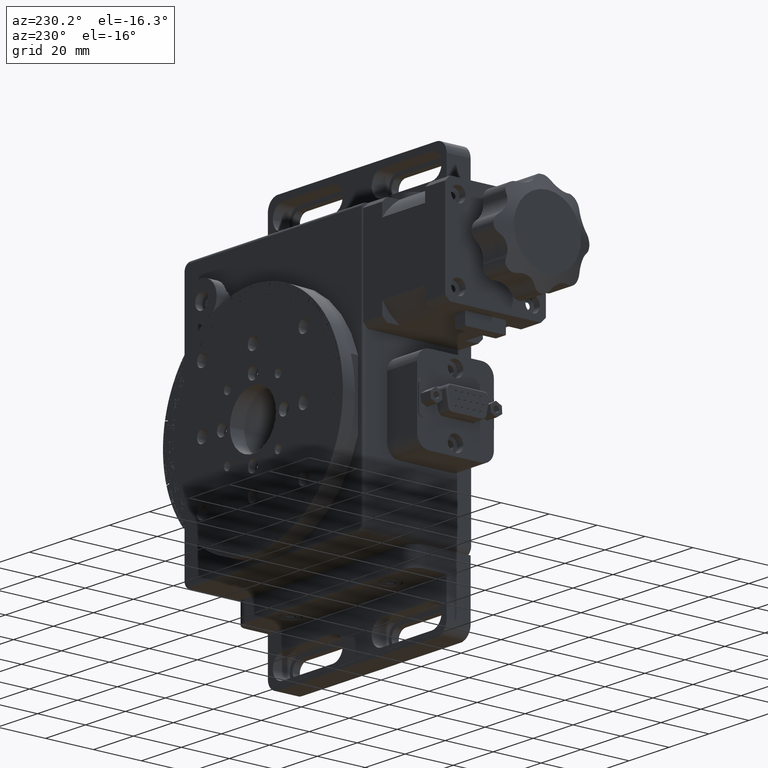
[diagram: clean part render]
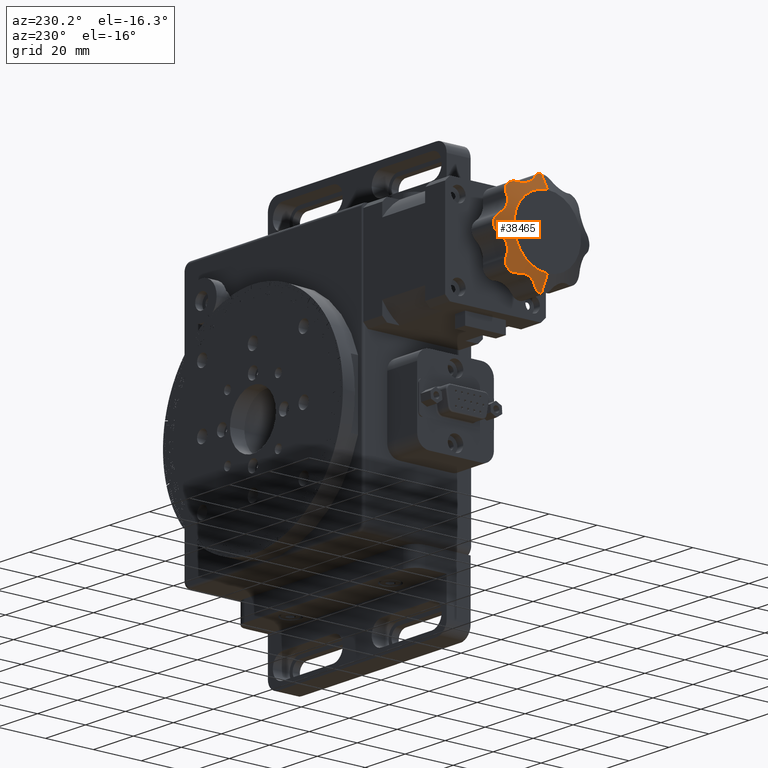
[diagram: same view with one face highlighted and labeled with its STEP entity id]
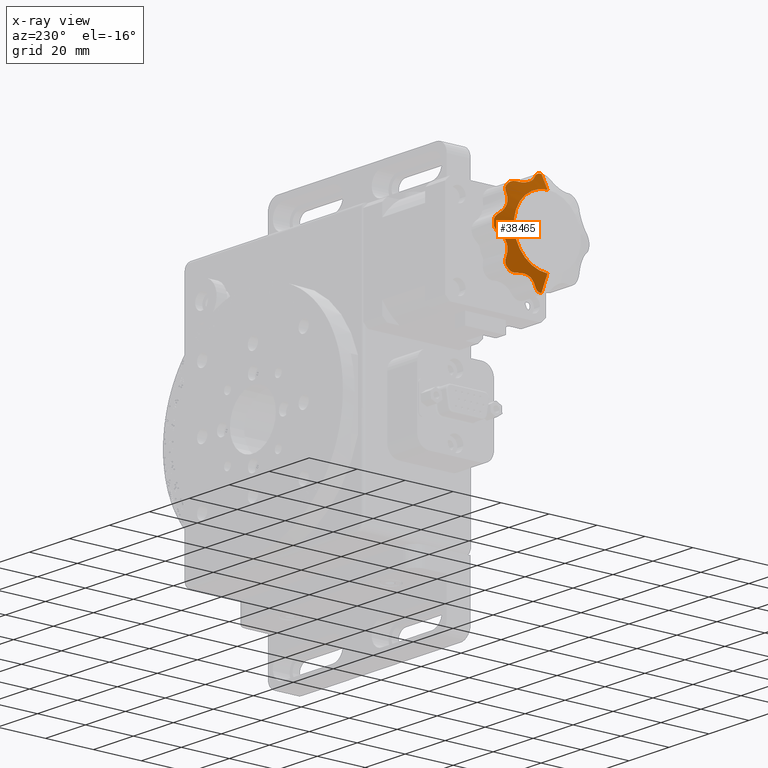
[diagram: x-ray of the same camera — body ghosted, the highlighted face saturated]
A machine part, auxiliary view. The second image highlights one B-rep face of the part: STEP entity #38465.
The next image is the same camera in x-ray: the body ghosted, the highlighted face saturated — about 0% of this face is hidden behind the body in this view.
In plain terms, the highlighted conical surface has half-angle 63 deg.
Its self-contained STEP definition (entity closure, byte-faithful):
#58 = CARTESIAN_POINT ( 'NONE',  ( -109.0000000000000000, 25.04832746820648700, 23.13981742408422400 ) ) ;
#455 = CARTESIAN_POINT ( 'NONE',  ( -110.4291772330564600, 29.62982667261972800, 26.86866267010562100 ) ) ;
#838 = VERTEX_POINT ( 'NONE', #96281 ) ;
#971 = EDGE_CURVE ( 'NONE', #35705, #40486, #5458, .T. ) ;
#1101 = B_SPLINE_CURVE_WITH_KNOTS ( 'NONE', 3,
 ( #16782, #100519, #42309, #101640, #50831, #58 ),
 .UNSPECIFIED., .F., .F.,
 ( 4, 2, 4 ),
 ( 2.561101793522169900E-007, 0.001425904833248683100, 0.002851553556318014000 ),
 .UNSPECIFIED. ) ;
#4368 = VERTEX_POINT ( 'NONE', #90158 ) ;
#4793 = CARTESIAN_POINT ( 'NONE',  ( -109.1420244716242400, 43.51593570404259700, 41.07836989509927200 ) ) ;
#4918 = CARTESIAN_POINT ( 'NONE',  ( -109.0515187176439400, 43.73450244827620300, 44.51111057135570800 ) ) ;
#5458 = CIRCLE ( 'NONE', #14194, 19.88783151651545800 ) ;
#6206 = ORIENTED_EDGE ( 'NONE', *, *, #98631, .T. ) ;
#6527 = CARTESIAN_POINT ( 'NONE',  ( -109.9063472167101700, 39.13607644208976700, 52.95329744906055700 ) ) ;
#6711 = CARTESIAN_POINT ( 'NONE',  ( -109.4321513908461400, 35.31370849898488700, 58.31370849898464600 ) ) ;
#6808 = DIRECTION ( 'NONE',  ( -1.000000000000000000, -1.224606353822377500E-016, 1.224606353822385100E-016 ) ) ;
#6860 = CARTESIAN_POINT ( 'NONE',  ( -110.1076968662358700, 41.23818802919774400, 38.87134215408395500 ) ) ;
#6895 = CARTESIAN_POINT ( 'NONE',  ( -110.3782248456928800, 40.36615583551913000, 48.24613468142371200 ) ) ;
#7222 = CARTESIAN_POINT ( 'NONE',  ( -109.8957182112122400, 39.15889358946785100, 33.05108196027770600 ) ) ;
#7373 = CARTESIAN_POINT ( 'NONE',  ( -109.0000000000000000, 43.86018257591578600, 41.95167253179373300 ) ) ;
#7647 = CARTESIAN_POINT ( 'NONE',  ( -110.1076968662359300, 28.12865784591646800, 60.23818802919773700 ) ) ;
#7754 = CARTESIAN_POINT ( 'NONE',  ( -109.6624876279491000, 39.25348212235951500, 53.62220015011042300 ) ) ;
#8005 = CARTESIAN_POINT ( 'NONE',  ( -109.8957182112121300, 33.94891803972292600, 58.15889358946765200 ) ) ;
#8156 = CARTESIAN_POINT ( 'NONE',  ( -109.1914101639428500, 26.12432713278854400, 62.39726155890817000 ) ) ;
#8573 = CARTESIAN_POINT ( 'NONE',  ( -109.0593759180046200, 39.00145618236304300, 55.88054708598183900 ) ) ;
#9009 = CARTESIAN_POINT ( 'NONE',  ( -110.3059522471157400, 28.88491938119797800, 26.37575942050471100 ) ) ;
#9166 = ORIENTED_EDGE ( 'NONE', *, *, #20438, .T. ) ;
#10439 = AXIS2_PLACEMENT_3D ( 'NONE', #20477, #96414, #79724 ) ;
#10501 = VERTEX_POINT ( 'NONE', #46191 ) ;
#10948 = CARTESIAN_POINT ( 'NONE',  ( -109.0000000000000000, 38.78454923670613400, 56.30199031336002200 ) ) ;
#11014 = B_SPLINE_CURVE_WITH_KNOTS ( 'NONE', 3,
 ( #92602, #100784, #109661, #58900, #8156, #67434, #16669, #75912, #25222, #84437 ),
 .UNSPECIFIED., .F., .F.,
 ( 4, 2, 2, 2, 4 ),
 ( 1.845941822928171800E-006, 0.0007127976259173467500, 0.001423749310011765400, 0.002134700994106183900, 0.002845652678200602600 ),
 .UNSPECIFIED. ) ;
#12792 = CIRCLE ( 'NONE', #22928, 19.88783151651545800 ) ;
#12962 = CARTESIAN_POINT ( 'NONE',  ( -112.0000000000000000, 23.99999999999997900, 43.00000000000004300 ) ) ;
#13064 = VERTEX_POINT ( 'NONE', #21336 ) ;
#13369 = CARTESIAN_POINT ( 'NONE',  ( -109.3045522205684500, 43.12800550427289200, 40.49605642396366500 ) ) ;
#13539 = VERTEX_POINT ( 'NONE', #72637 ) ;
#14194 = AXIS2_PLACEMENT_3D ( 'NONE', #99216, #48440, #107723 ) ;
#15063 = CARTESIAN_POINT ( 'NONE',  ( -110.1076970187258200, 39.10864167487844900, 52.26983697631865100 ) ) ;
#15192 = CARTESIAN_POINT ( 'NONE',  ( -109.1420244698525300, 36.44105280815430300, 27.84135184706145000 ) ) ;
#15314 = CARTESIAN_POINT ( 'NONE',  ( -109.3809031888825800, 35.48297365426956400, 58.31370849898463100 ) ) ;
#15395 = CARTESIAN_POINT ( 'NONE',  ( -110.3777367299795000, 40.36799925479998300, 37.75655400316270500 ) ) ;
#15411 = VERTEX_POINT ( 'NONE', #10948 ) ;
#15431 = CARTESIAN_POINT ( 'NONE',  ( -110.1806272532480200, 41.01203306021660900, 47.40749196638285700 ) ) ;
#15747 = CARTESIAN_POINT ( 'NONE',  ( -109.6624876279491000, 39.25348212235938700, 32.37779984988967600 ) ) ;
#16157 = CARTESIAN_POINT ( 'NONE',  ( -110.3777367299794900, 29.24344599683774200, 59.36799925479992600 ) ) ;
#16162 = CARTESIAN_POINT ( 'NONE',  ( -109.4321513908461400, 35.31370849898488700, 58.31370849898464600 ) ) ;
#16217 = CARTESIAN_POINT ( 'NONE',  ( -109.1340889378583700, 39.17828670694442600, 30.55348321901173100 ) ) ;
#16521 = CARTESIAN_POINT ( 'NONE',  ( -109.6624876279491000, 34.62220015011099900, 58.25348212235913100 ) ) ;
#16669 = CARTESIAN_POINT ( 'NONE',  ( -109.3674099949588800, 26.67840610605252700, 61.97955883692398500 ) ) ;
#16716 = ORIENTED_EDGE ( 'NONE', *, *, #91020, .T. ) ;
#16782 = CARTESIAN_POINT ( 'NONE',  ( -109.6624876279491300, 27.27481088816425400, 24.70312959730815900 ) ) ;
#17020 = EDGE_CURVE ( 'NONE', #61910, #4368, #48935, .T. ) ;
#17096 = CARTESIAN_POINT ( 'NONE',  ( -109.1914101614185700, 39.21806130307897600, 55.21380907498691200 ) ) ;
#17541 = CARTESIAN_POINT ( 'NONE',  ( -110.0435970462969700, 27.98589153905229000, 25.60334698750435200 ) ) ;
#17656 = EDGE_LOOP ( 'NONE', ( #31228, #33960, #42506, #109329, #6206, #52211, #92296, #82009, #87886, #17954, #9166, #25016, #44854, #98748, #46404, #16716, #84000, #90955, #52110, #71165, #56763, #62575 ) ) ;
#17954 = ORIENTED_EDGE ( 'NONE', *, *, #100106, .T. ) ;
#19470 = EDGE_CURVE ( 'NONE', #4368, #107686, #1101, .T. ) ;
#20004 = CARTESIAN_POINT ( 'NONE',  ( -109.0000000000000000, 23.99999999999998200, 62.88783151651553300 ) ) ;
#20438 = EDGE_CURVE ( 'NONE', #72836, #73378, #86469, .T. ) ;
#20477 = CARTESIAN_POINT ( 'NONE',  ( -112.0000000000000000, 23.99999999999997900, 43.00000000000004300 ) ) ;
#20658 = VERTEX_POINT ( 'NONE', #69460 ) ;
#21336 = CARTESIAN_POINT ( 'NONE',  ( -109.0000000000000300, 38.78454923670596300, 29.69800968664007700 ) ) ;
#21469 = DIRECTION ( 'NONE',  ( 0.0000000000000000000, 2.478176394252584600E-016, 1.000000000000000000 ) ) ;
#21883 = CARTESIAN_POINT ( 'NONE',  ( -109.5055536226903600, 42.65707282124853400, 40.00140130157240700 ) ) ;
#22928 = AXIS2_PLACEMENT_3D ( 'NONE', #44319, #103622, #52830 ) ;
#23088 = AXIS2_PLACEMENT_3D ( 'NONE', #27063, #86308, #35515 ) ;
#23309 = CARTESIAN_POINT ( 'NONE',  ( -109.4997279871319100, 39.33184240520777300, 31.93135292558533300 ) ) ;
#23727 = CARTESIAN_POINT ( 'NONE',  ( -109.3045522164379800, 35.75498693602106200, 27.70390211689390000 ) ) ;
#23925 = CARTESIAN_POINT ( 'NONE',  ( -110.4712212983298100, 39.84595546684309400, 36.83165703848045100 ) ) ;
#23968 = CARTESIAN_POINT ( 'NONE',  ( -109.8957180678858800, 41.75390421083993400, 46.68400874897201200 ) ) ;
#24196 = CARTESIAN_POINT ( 'NONE',  ( -109.2438062084029400, 35.99637814111690700, 58.25881527042838600 ) ) ;
#24714 = CARTESIAN_POINT ( 'NONE',  ( -110.4712212983297900, 30.16834296152004700, 58.84595546684301600 ) ) ;
#24774 = CARTESIAN_POINT ( 'NONE',  ( -109.0000000000000300, 38.78454923670596300, 29.69800968664007700 ) ) ;
#24960 = CARTESIAN_POINT ( 'NONE',  ( -109.6624876279491000, 34.62220015011085600, 27.74651787764096200 ) ) ;
#25016 = ORIENTED_EDGE ( 'NONE', *, *, #53394, .T. ) ;
#25222 = CARTESIAN_POINT ( 'NONE',  ( -109.5812778788824200, 27.14494457708912400, 61.48203000465140600 ) ) ;
#25485 = VERTEX_POINT ( 'NONE', #24960 ) ;
#25627 = CARTESIAN_POINT ( 'NONE',  ( -109.3674099899103900, 39.31449387680415000, 54.52665565504215600 ) ) ;
#26031 = AXIS2_PLACEMENT_3D ( 'NONE', #57582, #6808, #66095 ) ;
#26072 = CARTESIAN_POINT ( 'NONE',  ( -109.6624876279491300, 27.27481088816425400, 24.70312959730815900 ) ) ;
#27063 = CARTESIAN_POINT ( 'NONE',  ( -109.0000000000000000, 23.99999999999997900, 43.00000000000004300 ) ) ;
#28965 = VERTEX_POINT ( 'NONE', #29216 ) ;
#29201 = CARTESIAN_POINT ( 'NONE',  ( -109.0000000000000000, 23.99999999999997900, 43.00000000000004300 ) ) ;
#29216 = CARTESIAN_POINT ( 'NONE',  ( -112.0000000000000000, 23.99999999999998200, 57.00000000000002800 ) ) ;
#29959 = CARTESIAN_POINT ( 'NONE',  ( -109.8159028688820300, 34.20138475563072700, 27.82037931904236300 ) ) ;
#30381 = CARTESIAN_POINT ( 'NONE',  ( -109.6624876279491000, 42.29687040269192300, 39.72518911183600900 ) ) ;
#30710 = B_SPLINE_CURVE_WITH_KNOTS ( 'NONE', 3,
 ( #100695, #23309, #66991, #16217, #75486, #24774 ),
 .UNSPECIFIED., .F., .F.,
 ( 4, 2, 4 ),
 ( 2.128886231613393700E-007, 0.001425860909439208300, 0.002851508930255245700 ),
 .UNSPECIFIED. ) ;
#30835 = CIRCLE ( 'NONE', #94810, 19.88783151651545800 ) ;
#31228 = ORIENTED_EDGE ( 'NONE', *, *, #48676, .F. ) ;
#32070 = CARTESIAN_POINT ( 'NONE',  ( -110.3777368135645800, 39.28159960163551300, 50.86624647211531400 ) ) ;
#32201 = CARTESIAN_POINT ( 'NONE',  ( -109.5055536155509200, 35.07221325748957200, 27.68712781607077400 ) ) ;
#32400 = CARTESIAN_POINT ( 'NONE',  ( -110.4667672571537600, 39.57582878604115700, 36.16361874731035200 ) ) ;
#32447 = CARTESIAN_POINT ( 'NONE',  ( -109.6624876279491000, 42.29687040269192300, 46.27481088816409700 ) ) ;
#32689 = CARTESIAN_POINT ( 'NONE',  ( -109.0941526861526100, 36.66954619101479600, 58.09278166667656500 ) ) ;
#33187 = CARTESIAN_POINT ( 'NONE',  ( -110.4667672571537100, 30.83638125269014900, 58.57582878604105000 ) ) ;
#33960 = ORIENTED_EDGE ( 'NONE', *, *, #75757, .F. ) ;
#34046 = VECTOR ( 'NONE', #48104, 1000.000000000000000 ) ;
#34129 = CARTESIAN_POINT ( 'NONE',  ( -109.5812778587598800, 39.29258039298565600, 53.84495716466253200 ) ) ;
#34193 = CARTESIAN_POINT ( 'NONE',  ( -110.3424863418963900, 32.16014087459131300, 27.78756697079150900 ) ) ;
#34699 = EDGE_CURVE ( 'NONE', #107686, #89785, #12792, .T. ) ;
#35515 = DIRECTION ( 'NONE',  ( 0.0000000000000000000, 1.744507413526949900E-016, 1.000000000000000000 ) ) ;
#35705 = VERTEX_POINT ( 'NONE', #20004 ) ;
#36896 = CARTESIAN_POINT ( 'NONE',  ( -109.0000000000000000, 37.30199031336037100, 28.21545076329443100 ) ) ;
#37678 = DIRECTION ( 'NONE',  ( 0.0000000000000000000, 1.744507413526949900E-016, 1.000000000000000000 ) ) ;
#38243 = CARTESIAN_POINT ( 'NONE',  ( -109.0000000000000000, 25.04832746820649100, 62.86018257591585700 ) ) ;
#38465 = ADVANCED_FACE ( 'NONE', ( #97726 ), #44660, .T. ) ;
#38486 = CARTESIAN_POINT ( 'NONE',  ( -109.0000000000000000, 43.86018257591578600, 41.95167253179373300 ) ) ;
#38618 = CARTESIAN_POINT ( 'NONE',  ( -109.4997281778311200, 42.66796470288767300, 46.01453463288231700 ) ) ;
#38952 = CARTESIAN_POINT ( 'NONE',  ( -109.6624876279491000, 34.62220015011099900, 58.25348212235913100 ) ) ;
#39550 = CARTESIAN_POINT ( 'NONE',  ( -112.0000000000000000, 23.99999999999998200, 57.00000000000002800 ) ) ;
#39888 = CARTESIAN_POINT ( 'NONE',  ( -109.6624876279491000, 34.62220015011085600, 27.74651787764096200 ) ) ;
#40336 = CARTESIAN_POINT ( 'NONE',  ( -109.0000000000000000, 37.30199031336037100, 28.21545076329443100 ) ) ;
#40486 = VERTEX_POINT ( 'NONE', #38243 ) ;
#40586 = CARTESIAN_POINT ( 'NONE',  ( -110.4712213111370700, 39.56645992878768700, 49.84310483437156600 ) ) ;
#40714 = CARTESIAN_POINT ( 'NONE',  ( -109.6624876279491000, 34.62220015011085600, 27.74651787764096200 ) ) ;
#40918 = CARTESIAN_POINT ( 'NONE',  ( -110.4338197077304500, 39.41300267155308700, 35.65260713818968000 ) ) ;
#41180 = CARTESIAN_POINT ( 'NONE',  ( -109.0000000000000000, 37.30199031336052000, 57.78454923670565100 ) ) ;
#41704 = CARTESIAN_POINT ( 'NONE',  ( -110.4338197077303900, 31.34739286181085300, 58.41300267155297400 ) ) ;
#42309 = CARTESIAN_POINT ( 'NONE',  ( -109.3610719225173000, 26.69392727460955300, 24.00651130601104900 ) ) ;
#42506 = ORIENTED_EDGE ( 'NONE', *, *, #74126, .T. ) ;
#42702 = CARTESIAN_POINT ( 'NONE',  ( -110.4616876282445500, 31.00643195562418000, 27.48708374911698700 ) ) ;
#43210 = B_SPLINE_CURVE_WITH_KNOTS ( 'NONE', 3,
 ( #58601, #101221, #8573, #67854, #17096, #76338, #25627, #84855, #34129, #93399 ),
 .UNSPECIFIED., .F., .F.,
 ( 4, 2, 2, 2, 4 ),
 ( 1.845941825708950900E-006, 0.0007127976189506828500, 0.001423749296075656600, 0.002134700973200630600, 0.002845652650325604300 ),
 .UNSPECIFIED. ) ;
#44319 = CARTESIAN_POINT ( 'NONE',  ( -109.0000000000000000, 23.99999999999997900, 43.00000000000004300 ) ) ;
#44488 = CARTESIAN_POINT ( 'NONE',  ( -110.0681554785693000, 33.34121878844487700, 27.85808394342098600 ) ) ;
#44660 = CONICAL_SURFACE ( 'NONE', #10439, 13.99999999999998400, 1.099557428756430000 ) ;
#44854 = ORIENTED_EDGE ( 'NONE', *, *, #56668, .T. ) ;
#46191 = CARTESIAN_POINT ( 'NONE',  ( -109.6624876279491300, 27.27481088816437400, 61.29687040269195100 ) ) ;
#46404 = ORIENTED_EDGE ( 'NONE', *, *, #100917, .T. ) ;
#46428 = DIRECTION ( 'NONE',  ( 0.4539904997395443600, -2.120948867251498700E-016, -0.8910065241883691200 ) ) ;
#46671 = VERTEX_POINT ( 'NONE', #36896 ) ;
#48104 = DIRECTION ( 'NONE',  ( 0.4539904997395446400, 2.141699880496890900E-016, 0.8910065241883690100 ) ) ;
#48324 = CARTESIAN_POINT ( 'NONE',  ( -109.0000000000000000, 43.86018257591578600, 44.04832746820635200 ) ) ;
#48440 = DIRECTION ( 'NONE',  ( -1.000000000000000000, -1.224606353822377500E-016, 1.224606353822385100E-016 ) ) ;
#48676 = EDGE_CURVE ( 'NONE', #20658, #89785, #57586, .T. ) ;
#48935 = B_SPLINE_CURVE_WITH_KNOTS ( 'NONE', 3,
 ( #67933, #76418, #34193, #93470, #42702, #102029, #51210, #455, #59762, #9009, #68292, #17541, #76795, #26072 ),
 .UNSPECIFIED., .F., .F.,
 ( 4, 2, 2, 2, 2, 2, 4 ),
 ( 0.001345775553808600100, 0.003148209549154273600, 0.004049426546827101000, 0.004950643544499929800, 0.005851860542172757600, 0.006753077539845585500, 0.008555511535191257600 ),
 .UNSPECIFIED. ) ;
#49120 = CARTESIAN_POINT ( 'NONE',  ( -110.4667672483696200, 39.84782582704134800, 49.17972233872330200 ) ) ;
#49447 = CARTESIAN_POINT ( 'NONE',  ( -110.3234121039777300, 39.22019407640752300, 34.78953390261130400 ) ) ;
#49482 = EDGE_CURVE ( 'NONE', #25485, #61910, #93693, .T. ) ;
#50225 = B_SPLINE_CURVE_WITH_KNOTS ( 'NONE', 3,
 ( #38486, #55220, #55589, #4793, #64110, #13369, #72591, #21883, #81114, #30381 ),
 .UNSPECIFIED., .F., .F.,
 ( 4, 2, 2, 2, 4 ),
 ( 1.845941822940342200E-006, 0.0007127976259173225700, 0.001423749310011704700, 0.002134700994106086700, 0.002845652678200469000 ),
 .UNSPECIFIED. ) ;
#50228 = CARTESIAN_POINT ( 'NONE',  ( -110.3234121039777300, 32.21046609738925100, 58.22019407640738800 ) ) ;
#50831 = CARTESIAN_POINT ( 'NONE',  ( -109.0515187176439300, 25.51111057135590700, 23.26549755172381900 ) ) ;
#51210 = CARTESIAN_POINT ( 'NONE',  ( -110.4690261800602800, 30.16279612087919700, 27.14853277426054500 ) ) ;
#52110 = ORIENTED_EDGE ( 'NONE', *, *, #49482, .T. ) ;
#52211 = ORIENTED_EDGE ( 'NONE', *, *, #79757, .T. ) ;
#52830 = DIRECTION ( 'NONE',  ( 0.0000000000000000000, 1.744507413526949900E-016, 1.000000000000000000 ) ) ;
#52883 = CIRCLE ( 'NONE', #23088, 19.88783151651545800 ) ;
#53394 = EDGE_CURVE ( 'NONE', #73378, #93064, #109627, .T. ) ;
#54104 = VERTEX_POINT ( 'NONE', #7373 ) ;
#54592 = CARTESIAN_POINT ( 'NONE',  ( -109.0000000000000000, 37.30199031336052000, 57.78454923670565100 ) ) ;
#55000 = B_SPLINE_CURVE_WITH_KNOTS ( 'NONE', 3,
 ( #100264, #58396, #7647, #66938, #16157, #75420, #24714, #83936, #33187, #92454, #41704, #101009, #50228, #109522, #58768, #8005, #67296, #16521 ),
 .UNSPECIFIED., .F., .F.,
 ( 4, 2, 2, 2, 2, 2, 2, 2, 4 ),
 ( 2.564491608464168600E-007, 0.002139081010340496000, 0.003208493290930324700, 0.004277905571520152600, 0.004812611711815068300, 0.005347317852109983100, 0.006416730132699792800, 0.007486142413289602500, 0.008555554693879412200 ),
 .UNSPECIFIED. ) ;
#55220 = CARTESIAN_POINT ( 'NONE',  ( -109.0256971240976600, 43.79749433396676000, 41.72084002322608100 ) ) ;
#55589 = CARTESIAN_POINT ( 'NONE',  ( -109.0593759186635300, 43.71555358250858300, 41.50029079134323200 ) ) ;
#55723 = CARTESIAN_POINT ( 'NONE',  ( -109.1340889782051600, 43.53368578314130800, 44.93165305061462100 ) ) ;
#55823 = VERTEX_POINT ( 'NONE', #6711 ) ;
#56145 = EDGE_CURVE ( 'NONE', #13064, #46671, #30835, .T. ) ;
#56639 = LINE ( 'NONE', #39550, #34046 ) ;
#56668 = EDGE_CURVE ( 'NONE', #93064, #54104, #58493, .T. ) ;
#56763 = ORIENTED_EDGE ( 'NONE', *, *, #19470, .T. ) ;
#57025 = CARTESIAN_POINT ( 'NONE',  ( -110.0681554785693000, 33.34121878844487700, 27.85808394342098600 ) ) ;
#57366 = CARTESIAN_POINT ( 'NONE',  ( -109.0000000000000000, 25.04832746820648700, 23.13981742408422400 ) ) ;
#57550 = CARTESIAN_POINT ( 'NONE',  ( -109.4321513908461400, 35.31370849898488700, 58.31370849898464600 ) ) ;
#57582 = CARTESIAN_POINT ( 'NONE',  ( -109.0000000000000000, 23.99999999999997900, 43.00000000000004300 ) ) ;
#57586 = LINE ( 'NONE', #80504, #80079 ) ;
#57672 = CARTESIAN_POINT ( 'NONE',  ( -110.4338196571570700, 40.09403031007273200, 48.70324688186109100 ) ) ;
#57994 = CARTESIAN_POINT ( 'NONE',  ( -110.0936132756212800, 39.13437783158880000, 33.73762914353497400 ) ) ;
#58396 = CARTESIAN_POINT ( 'NONE',  ( -109.9063469930233300, 27.66477781365416900, 60.74086692416695900 ) ) ;
#58399 = CARTESIAN_POINT ( 'NONE',  ( -109.6624876279491000, 34.62220015011099900, 58.25348212235913100 ) ) ;
#58493 = CIRCLE ( 'NONE', #26031, 19.88783151651545800 ) ;
#58601 = CARTESIAN_POINT ( 'NONE',  ( -109.0000000000000000, 38.78454923670613400, 56.30199031336002200 ) ) ;
#58768 = CARTESIAN_POINT ( 'NONE',  ( -110.0936132756212100, 33.26237085646563000, 58.13437783158860800 ) ) ;
#58900 = CARTESIAN_POINT ( 'NONE',  ( -109.1420244716242000, 25.92163010490100200, 62.51593570404264000 ) ) ;
#59762 = CARTESIAN_POINT ( 'NONE',  ( -110.3962144957780000, 29.37442196788357100, 26.71391286247747800 ) ) ;
#61910 = VERTEX_POINT ( 'NONE', #44488 ) ;
#62575 = ORIENTED_EDGE ( 'NONE', *, *, #34699, .T. ) ;
#64110 = CARTESIAN_POINT ( 'NONE',  ( -109.1914101639428600, 43.39726155890811300, 40.87567286721174800 ) ) ;
#64232 = CARTESIAN_POINT ( 'NONE',  ( -109.0000000000000000, 43.86018257591578600, 44.04832746820635200 ) ) ;
#65937 = CARTESIAN_POINT ( 'NONE',  ( -109.0593759180045800, 36.88054708598227200, 27.99854381763731900 ) ) ;
#66095 = DIRECTION ( 'NONE',  ( 0.0000000000000000000, 1.744507413526949900E-016, 1.000000000000000000 ) ) ;
#66150 = CARTESIAN_POINT ( 'NONE',  ( -110.3225106727056900, 40.57110591280400100, 38.04765497597874500 ) ) ;
#66181 = CARTESIAN_POINT ( 'NONE',  ( -110.3234119966748900, 40.56797905133660700, 47.95662572260391000 ) ) ;
#66504 = CARTESIAN_POINT ( 'NONE',  ( -109.7844690265437600, 39.19475443748547900, 32.71239274989547900 ) ) ;
#66938 = CARTESIAN_POINT ( 'NONE',  ( -110.3225106727056600, 28.95234502402170700, 59.57110591280395100 ) ) ;
#66943 = CARTESIAN_POINT ( 'NONE',  ( -109.5025853109541500, 35.08107578276066400, 58.31370849898464600 ) ) ;
#66991 = CARTESIAN_POINT ( 'NONE',  ( -109.3610722483293900, 39.33531903817289100, 31.47447082142100400 ) ) ;
#67296 = CARTESIAN_POINT ( 'NONE',  ( -109.7844690265437200, 34.28760725010516100, 58.19475443748525100 ) ) ;
#67434 = CARTESIAN_POINT ( 'NONE',  ( -109.3045522205684500, 26.50394357603665100, 62.12800550427294200 ) ) ;
#67854 = CARTESIAN_POINT ( 'NONE',  ( -109.1420244698525900, 39.15864815293889500, 55.44105280815384900 ) ) ;
#67933 = CARTESIAN_POINT ( 'NONE',  ( -110.0681554785693000, 33.34121878844487700, 27.85808394342098600 ) ) ;
#67993 = CARTESIAN_POINT ( 'NONE',  ( -109.6624876279491000, 42.29687040269192300, 46.27481088816409700 ) ) ;
#68292 = CARTESIAN_POINT ( 'NONE',  ( -110.2481759545137800, 28.64938949128604400, 26.19102712521037900 ) ) ;
#69460 = CARTESIAN_POINT ( 'NONE',  ( -112.0000000000000000, 23.99999999999997200, 29.00000000000004600 ) ) ;
#69697 = B_SPLINE_CURVE_WITH_KNOTS ( 'NONE', 3,
 ( #73904, #82424, #6860, #66150, #15395, #74642, #23925, #83176, #32400, #91690, #40918, #100217, #49447, #108725, #57994, #7222, #66504, #15747 ),
 .UNSPECIFIED., .F., .F.,
 ( 4, 2, 2, 2, 2, 2, 2, 2, 4 ),
 ( 2.564491608260578400E-007, 0.002139081010340370600, 0.003208493290930143000, 0.004277905571519915800, 0.004812611711814815900, 0.005347317852109715100, 0.006416730132699504000, 0.007486142413289293700, 0.008555554693879082600 ),
 .UNSPECIFIED. ) ;
#71165 = ORIENTED_EDGE ( 'NONE', *, *, #17020, .T. ) ;
#71982 = CARTESIAN_POINT ( 'NONE',  ( -109.6624876279491000, 42.29687040269192300, 46.27481088816409700 ) ) ;
#72191 = DIRECTION ( 'NONE',  ( -1.000000000000000000, -1.224606353822377500E-016, 1.224606353822385100E-016 ) ) ;
#72591 = CARTESIAN_POINT ( 'NONE',  ( -109.3674099949588900, 42.97955883692394300, 40.32159389394781400 ) ) ;
#72637 = CARTESIAN_POINT ( 'NONE',  ( -109.6624876279491000, 39.25348212235938700, 32.37779984988967600 ) ) ;
#72790 = EDGE_CURVE ( 'NONE', #46671, #25485, #95623, .T. ) ;
#72836 = VERTEX_POINT ( 'NONE', #7754 ) ;
#73378 = VERTEX_POINT ( 'NONE', #67993 ) ;
#73506 = VERTEX_POINT ( 'NONE', #54592 ) ;
#73904 = CARTESIAN_POINT ( 'NONE',  ( -109.6624876279491000, 42.29687040269192300, 39.72518911183600900 ) ) ;
#74126 = EDGE_CURVE ( 'NONE', #28965, #35705, #56639, .T. ) ;
#74323 = CARTESIAN_POINT ( 'NONE',  ( -109.6624876279491000, 39.25348212235951500, 53.62220015011042300 ) ) ;
#74428 = CARTESIAN_POINT ( 'NONE',  ( -109.1914101614185500, 36.21380907498733100, 27.78193869692136500 ) ) ;
#74642 = CARTESIAN_POINT ( 'NONE',  ( -110.4519292569573100, 40.00592656906529500, 37.14916071202391400 ) ) ;
#74690 = CARTESIAN_POINT ( 'NONE',  ( -110.0936131362178700, 41.25110680748107200, 47.15213557454755700 ) ) ;
#74917 = CARTESIAN_POINT ( 'NONE',  ( -109.3329612935858300, 35.65335088679252400, 58.30301273992492400 ) ) ;
#75420 = CARTESIAN_POINT ( 'NONE',  ( -110.4519292569572700, 29.85083928797658400, 59.00592656906518800 ) ) ;
#75486 = CARTESIAN_POINT ( 'NONE',  ( -109.0515186887565600, 39.02291690299085000, 30.11411579429285000 ) ) ;
#75757 = EDGE_CURVE ( 'NONE', #28965, #20658, #97120, .T. ) ;
#75912 = CARTESIAN_POINT ( 'NONE',  ( -109.5055536226903300, 26.99859869842794400, 61.65707282124854800 ) ) ;
#76338 = CARTESIAN_POINT ( 'NONE',  ( -109.3045522164380000, 39.29609788310644100, 54.75498693602063600 ) ) ;
#76418 = CARTESIAN_POINT ( 'NONE',  ( -110.2234977601906800, 32.76054556079312600, 27.85808394342098300 ) ) ;
#76795 = CARTESIAN_POINT ( 'NONE',  ( -109.8680802084595500, 27.60358360723037700, 25.17188415954498400 ) ) ;
#79724 = DIRECTION ( 'NONE',  ( 0.0000000000000000000, 2.478176394252584600E-016, 1.000000000000000000 ) ) ;
#79757 = EDGE_CURVE ( 'NONE', #10501, #94685, #55000, .T. ) ;
#80079 = VECTOR ( 'NONE', #46428, 1000.000000000000100 ) ;
#80485 = EDGE_CURVE ( 'NONE', #54104, #838, #50225, .T. ) ;
#80504 = CARTESIAN_POINT ( 'NONE',  ( -112.0000000000000000, 23.99999999999997500, 29.00000000000006000 ) ) ;
#81114 = CARTESIAN_POINT ( 'NONE',  ( -109.5812778788824200, 42.48203000465138500, 39.85505542291124900 ) ) ;
#82009 = ORIENTED_EDGE ( 'NONE', *, *, #102424, .T. ) ;
#82424 = CARTESIAN_POINT ( 'NONE',  ( -109.9063469930233600, 41.74086692416697300, 39.33522218634622900 ) ) ;
#82846 = CARTESIAN_POINT ( 'NONE',  ( -110.3225106314464600, 39.21937809799158000, 51.21570479898589000 ) ) ;
#82972 = CARTESIAN_POINT ( 'NONE',  ( -109.3674099899103600, 35.52665565504256100, 27.68550612319619500 ) ) ;
#83176 = CARTESIAN_POINT ( 'NONE',  ( -110.4715224592072600, 39.63919999233127800, 36.33358083552285200 ) ) ;
#83215 = CARTESIAN_POINT ( 'NONE',  ( -109.7844689233043000, 42.01875098533094600, 46.46987688738230600 ) ) ;
#83450 = CARTESIAN_POINT ( 'NONE',  ( -109.2029685174675300, 36.16780458007140500, 58.22528648590337500 ) ) ;
#83936 = CARTESIAN_POINT ( 'NONE',  ( -110.4715224592072100, 30.66641916447766300, 58.63919999233119300 ) ) ;
#84000 = ORIENTED_EDGE ( 'NONE', *, *, #56145, .T. ) ;
#84437 = CARTESIAN_POINT ( 'NONE',  ( -109.6624876279491300, 27.27481088816437400, 61.29687040269195100 ) ) ;
#84855 = CARTESIAN_POINT ( 'NONE',  ( -109.5055536155509700, 39.31287218392957100, 54.07221325748913900 ) ) ;
#85358 = B_SPLINE_CURVE_WITH_KNOTS ( 'NONE', 3,
 ( #58399, #109165, #66943, #16162 ),
 .UNSPECIFIED., .F., .F.,
 ( 4, 4 ),
 ( 2.128886231613394000E-007, 0.0007293649178631464100 ),
 .UNSPECIFIED. ) ;
#86308 = DIRECTION ( 'NONE',  ( -1.000000000000000000, -1.224606353822377500E-016, 1.224606353822385100E-016 ) ) ;
#86469 = B_SPLINE_CURVE_WITH_KNOTS ( 'NONE', 3,
 ( #74323, #6527, #15063, #82846, #32070, #91361, #40586, #99892, #49120, #108413, #57672, #6895, #66181, #15431, #74690, #23968, #83215, #32447 ),
 .UNSPECIFIED., .F., .F.,
 ( 4, 2, 2, 2, 2, 2, 2, 2, 4 ),
 ( 2.131679597098142200E-007, 0.002139037759767483600, 0.003208450055671370100, 0.004277862351575258000, 0.004812568499527211000, 0.005347274647479164000, 0.006416686943383064800, 0.007486099239286965600, 0.008555511535190867300 ),
 .UNSPECIFIED. ) ;
#87886 = ORIENTED_EDGE ( 'NONE', *, *, #109020, .T. ) ;
#88024 = B_SPLINE_CURVE_WITH_KNOTS ( 'NONE', 3,
 ( #57550, #15314, #74917, #24196, #83450, #32689, #91962, #41180 ),
 .UNSPECIFIED., .F., .F.,
 ( 4, 2, 2, 4 ),
 ( 0.0007293649178631464100, 0.001259900920961147600, 0.001790436924059148900, 0.002851508930255165900 ),
 .UNSPECIFIED. ) ;
#88497 = DIRECTION ( 'NONE',  ( -1.000000000000000000, -1.224606353822377500E-016, 1.224606353822385100E-016 ) ) ;
#89785 = VERTEX_POINT ( 'NONE', #98894 ) ;
#90158 = CARTESIAN_POINT ( 'NONE',  ( -109.6624876279491300, 27.27481088816425400, 24.70312959730815900 ) ) ;
#90955 = ORIENTED_EDGE ( 'NONE', *, *, #72790, .T. ) ;
#91020 = EDGE_CURVE ( 'NONE', #13539, #13064, #30710, .T. ) ;
#91129 = CARTESIAN_POINT ( 'NONE',  ( -109.0256971238457500, 37.09443980228571300, 28.09655481331624600 ) ) ;
#91361 = CARTESIAN_POINT ( 'NONE',  ( -110.4519293113118000, 39.45506756187336400, 50.18073037974068700 ) ) ;
#91475 = CARTESIAN_POINT ( 'NONE',  ( -109.5812778587598900, 34.84495716466294400, 27.70741960701467500 ) ) ;
#91690 = CARTESIAN_POINT ( 'NONE',  ( -110.4479042614597100, 39.46292887568891000, 35.82357101171923100 ) ) ;
#91962 = CARTESIAN_POINT ( 'NONE',  ( -109.0383439934944600, 36.99229357476098600, 57.96195996795486100 ) ) ;
#92296 = ORIENTED_EDGE ( 'NONE', *, *, #106154, .T. ) ;
#92454 = CARTESIAN_POINT ( 'NONE',  ( -110.4479042614596600, 31.17642898828130200, 58.46292887568881000 ) ) ;
#92602 = CARTESIAN_POINT ( 'NONE',  ( -109.0000000000000000, 25.04832746820649100, 62.86018257591585700 ) ) ;
#93064 = VERTEX_POINT ( 'NONE', #48324 ) ;
#93399 = CARTESIAN_POINT ( 'NONE',  ( -109.6624876279491000, 39.25348212235951500, 53.62220015011042300 ) ) ;
#93470 = CARTESIAN_POINT ( 'NONE',  ( -110.4413483650831000, 31.29212072044073500, 27.57534814819745600 ) ) ;
#93693 = B_SPLINE_CURVE_WITH_KNOTS ( 'NONE', 3,
 ( #39888, #29959, #107739, #57025 ),
 .UNSPECIFIED., .F., .F.,
 ( 4, 4 ),
 ( 2.131679597164891100E-007, 0.001345775553808600100 ),
 .UNSPECIFIED. ) ;
#94685 = VERTEX_POINT ( 'NONE', #38952 ) ;
#94810 = AXIS2_PLACEMENT_3D ( 'NONE', #29201, #88497, #37678 ) ;
#95623 = B_SPLINE_CURVE_WITH_KNOTS ( 'NONE', 3,
 ( #40336, #91129, #65937, #15192, #74428, #23727, #82972, #32201, #91475, #40714 ),
 .UNSPECIFIED., .F., .F.,
 ( 4, 2, 2, 2, 4 ),
 ( 1.845941825707753600E-006, 0.0007127976189506593200, 0.001423749296075610800, 0.002134700973200562000, 0.002845652650325513700 ),
 .UNSPECIFIED. ) ;
#96281 = CARTESIAN_POINT ( 'NONE',  ( -109.6624876279491000, 42.29687040269192300, 39.72518911183600900 ) ) ;
#96414 = DIRECTION ( 'NONE',  ( 1.000000000000000000, 1.224606353822377500E-016, -1.224606353822385100E-016 ) ) ;
#97120 = CIRCLE ( 'NONE', #106772, 13.99999999999998400 ) ;
#97726 = FACE_OUTER_BOUND ( 'NONE', #17656, .T. ) ;
#98631 = EDGE_CURVE ( 'NONE', #40486, #10501, #11014, .T. ) ;
#98748 = ORIENTED_EDGE ( 'NONE', *, *, #80485, .T. ) ;
#98894 = CARTESIAN_POINT ( 'NONE',  ( -109.0000000000000000, 23.99999999999997500, 23.11216848348456700 ) ) ;
#99216 = CARTESIAN_POINT ( 'NONE',  ( -109.0000000000000000, 23.99999999999997900, 43.00000000000004300 ) ) ;
#99892 = CARTESIAN_POINT ( 'NONE',  ( -110.4715224530974600, 39.77245465182248600, 49.34471398010667500 ) ) ;
#100106 = EDGE_CURVE ( 'NONE', #15411, #72836, #43210, .T. ) ;
#100217 = CARTESIAN_POINT ( 'NONE',  ( -110.3782249368032900, 39.28219731838608900, 35.13695829397490700 ) ) ;
#100264 = CARTESIAN_POINT ( 'NONE',  ( -109.6624876279491300, 27.27481088816437400, 61.29687040269195100 ) ) ;
#100519 = CARTESIAN_POINT ( 'NONE',  ( -109.4997281778311200, 27.01453463288253700, 24.33203529711235200 ) ) ;
#100695 = CARTESIAN_POINT ( 'NONE',  ( -109.6624876279491000, 39.25348212235938700, 32.37779984988967600 ) ) ;
#100784 = CARTESIAN_POINT ( 'NONE',  ( -109.0256971240976500, 25.27915997677415700, 62.79749433396682400 ) ) ;
#100917 = EDGE_CURVE ( 'NONE', #838, #13539, #69697, .T. ) ;
#101009 = CARTESIAN_POINT ( 'NONE',  ( -110.3782249368032600, 31.86304170602565500, 58.28219731838594700 ) ) ;
#101221 = CARTESIAN_POINT ( 'NONE',  ( -109.0256971238457700, 38.90344518668409500, 56.09443980228529400 ) ) ;
#101640 = CARTESIAN_POINT ( 'NONE',  ( -109.1340889782051600, 25.93165305061483400, 23.46631421685872400 ) ) ;
#102029 = CARTESIAN_POINT ( 'NONE',  ( -110.4756893889789200, 30.44256923066731300, 27.27424577500002200 ) ) ;
#102424 = EDGE_CURVE ( 'NONE', #55823, #73506, #88024, .T. ) ;
#103622 = DIRECTION ( 'NONE',  ( -1.000000000000000000, -1.224606353822377500E-016, 1.224606353822385100E-016 ) ) ;
#106154 = EDGE_CURVE ( 'NONE', #94685, #55823, #85358, .T. ) ;
#106463 = CARTESIAN_POINT ( 'NONE',  ( -109.3610719225173100, 42.99348869398900100, 45.69392727460933700 ) ) ;
#106772 = AXIS2_PLACEMENT_3D ( 'NONE', #12962, #72191, #21469 ) ;
#107686 = VERTEX_POINT ( 'NONE', #57366 ) ;
#107723 = DIRECTION ( 'NONE',  ( 0.0000000000000000000, 1.744507413526949900E-016, 1.000000000000000000 ) ) ;
#107739 = CARTESIAN_POINT ( 'NONE',  ( -109.9521885518349900, 33.77470598165985600, 27.85808394342098600 ) ) ;
#108413 = CARTESIAN_POINT ( 'NONE',  ( -110.4479042270337900, 40.00844370797667400, 48.85943980494035100 ) ) ;
#108725 = CARTESIAN_POINT ( 'NONE',  ( -110.1806272895485400, 39.14589139243838600, 34.08724364501101400 ) ) ;
#109020 = EDGE_CURVE ( 'NONE', #73506, #15411, #52883, .T. ) ;
#109165 = CARTESIAN_POINT ( 'NONE',  ( -109.5792437131486300, 34.85053679144981200, 58.29355972806292400 ) ) ;
#109329 = ORIENTED_EDGE ( 'NONE', *, *, #971, .T. ) ;
#109522 = CARTESIAN_POINT ( 'NONE',  ( -110.1806272895484400, 32.91275635498957500, 58.14589139243821600 ) ) ;
#109627 = B_SPLINE_CURVE_WITH_KNOTS ( 'NONE', 3,
 ( #71982, #38618, #106463, #55723, #4918, #64232 ),
 .UNSPECIFIED., .F., .F.,
 ( 4, 2, 4 ),
 ( 2.561101793826865200E-007, 0.001425904833248746900, 0.002851553556318111100 ),
 .UNSPECIFIED. ) ;
#109661 = CARTESIAN_POINT ( 'NONE',  ( -109.0593759186634900, 25.49970920865704100, 62.71555358250866200 ) ) ;